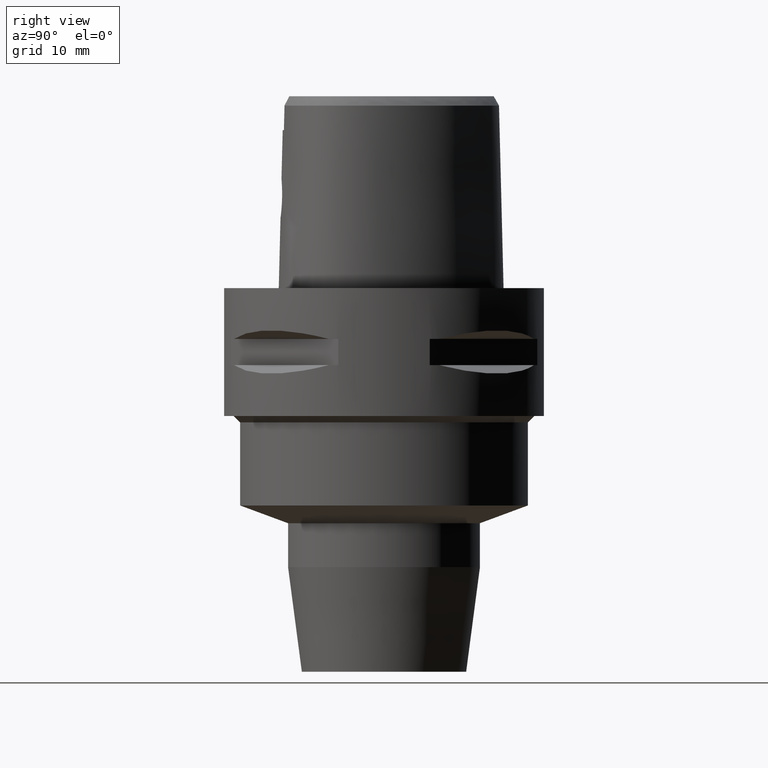
[diagram: clean part render]
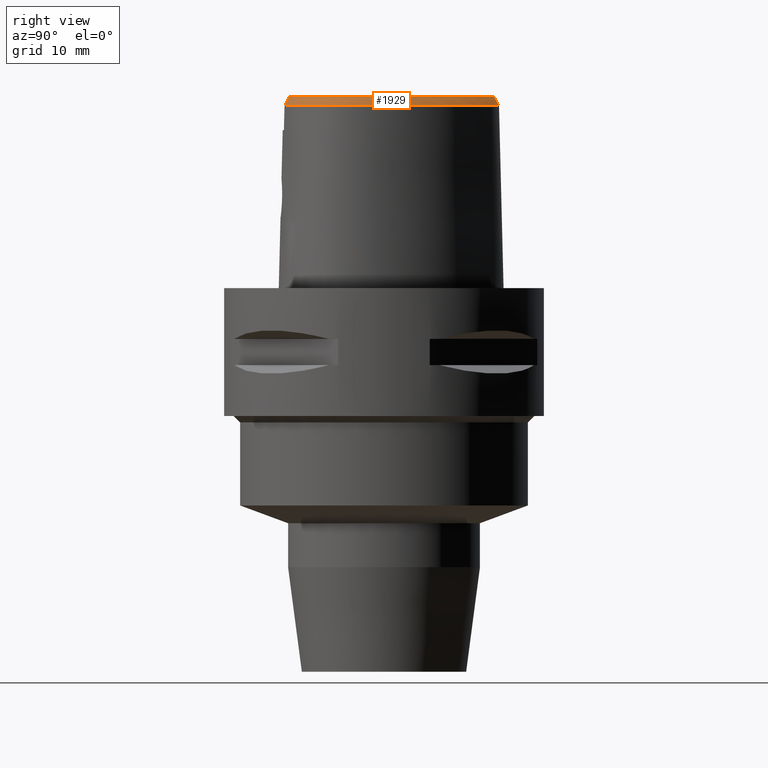
[diagram: same view with one face highlighted and labeled with its STEP entity id]
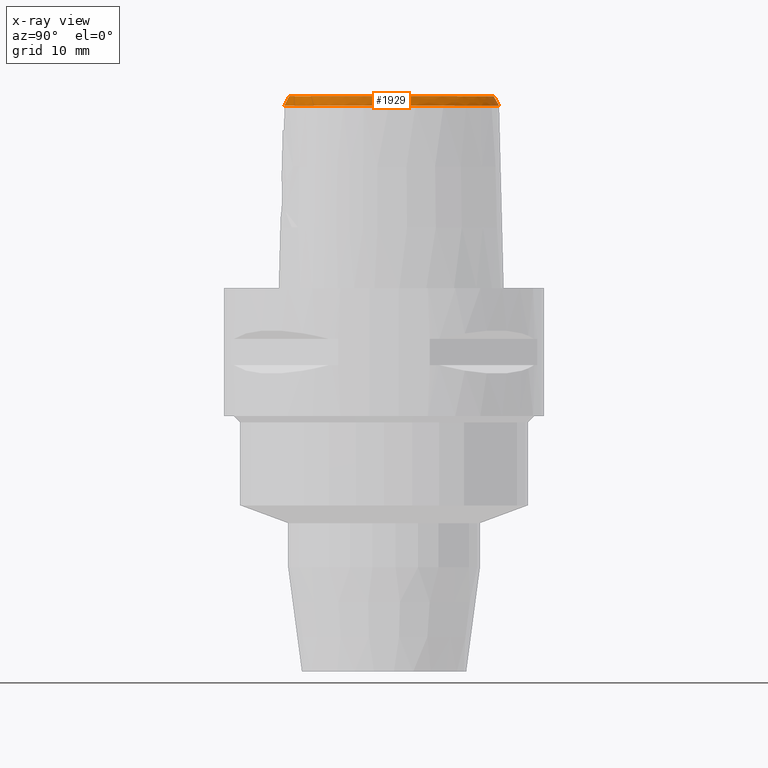
[diagram: x-ray of the same camera — body ghosted, the highlighted face saturated]
A machine part, right view. The second image highlights one B-rep face of the part: STEP entity #1929.
The next image is the same camera in x-ray: the body ghosted, the highlighted face saturated — about 0% of this face is hidden behind the body in this view.
In plain terms, the highlighted face is a freeform B-spline surface patch.
Its self-contained STEP definition (entity closure, byte-faithful):
#65=CARTESIAN_POINT('',(-6.301949014246E-11,1.715328888648E1,3.E1));
#70=CARTESIAN_POINT('',(-6.301949014246E-11,1.715328888648E1,3.E1));
#71=CARTESIAN_POINT('',(2.781743358187E-1,1.715328888649E1,3.E1));
#72=CARTESIAN_POINT('',(8.461369705698E-1,1.712422549201E1,3.E1));
#73=CARTESIAN_POINT('',(1.725779770091E0,1.698958235458E1,3.E1));
#74=CARTESIAN_POINT('',(2.654574267476E0,1.675366590228E1,3.E1));
#75=CARTESIAN_POINT('',(3.646346634455E0,1.639727879931E1,3.E1));
#76=CARTESIAN_POINT('',(4.648978793967E0,1.592888287609E1,3.E1));
#77=CARTESIAN_POINT('',(5.643278829914E0,1.536124022056E1,3.E1));
#78=CARTESIAN_POINT('',(6.663576897900E0,1.466993373162E1,3.E1));
#79=CARTESIAN_POINT('',(7.672880714160E0,1.387347375077E1,3.E1));
#80=CARTESIAN_POINT('',(8.704069001997E0,1.294091907278E1,3.E1));
#81=CARTESIAN_POINT('',(9.809858872996E0,1.179616593917E1,3.E1));
#82=CARTESIAN_POINT('',(1.099585363853E1,1.037375803600E1,3.E1));
#83=CARTESIAN_POINT('',(1.215953748883E1,8.734792007512E0,3.E1));
#84=CARTESIAN_POINT('',(1.320096428148E1,7.001526839511E0,3.E1));
#85=CARTESIAN_POINT('',(1.410630213819E1,5.201750867411E0,3.E1));
#86=CARTESIAN_POINT('',(1.484552963250E1,3.397817018095E0,3.E1));
#87=CARTESIAN_POINT('',(1.537493092019E1,1.760610458021E0,3.E1));
#88=CARTESIAN_POINT('',(1.573149397842E1,3.210408157224E-1,3.E1));
#89=CARTESIAN_POINT('',(1.596472918531E1,-9.955686745852E-1,3.E1));
#90=CARTESIAN_POINT('',(1.609593779092E1,-2.234970421776E0,3.E1));
#91=CARTESIAN_POINT('',(1.613327766090E1,-3.411433306686E0,3.E1));
#92=CARTESIAN_POINT('',(1.607933476981E1,-4.541326798673E0,3.E1));
#93=CARTESIAN_POINT('',(1.593185418556E1,-5.619408447129E0,3.E1));
#94=CARTESIAN_POINT('',(1.570229925424E1,-6.595931186450E0,3.E1));
#95=CARTESIAN_POINT('',(1.540551149589E1,-7.467658101072E0,3.E1));
#96=CARTESIAN_POINT('',(1.505264416751E1,-8.244300146185E0,3.E1));
#97=CARTESIAN_POINT('',(1.463669857372E1,-8.959662662165E0,3.E1));
#98=CARTESIAN_POINT('',(1.412997335554E1,-9.657961837707E0,3.E1));
#99=CARTESIAN_POINT('',(1.351749485342E1,-1.034760342802E1,3.E1));
#100=CARTESIAN_POINT('',(1.278002883976E1,-1.103239934203E1,3.E1));
#101=CARTESIAN_POINT('',(1.190626527410E1,-1.170101754544E1,3.E1));
#102=CARTESIAN_POINT('',(1.095059875698E1,-1.230709658088E1,3.E1));
#103=CARTESIAN_POINT('',(9.905724948429E0,-1.285982121622E1,3.E1));
#104=CARTESIAN_POINT('',(8.758408002726E0,-1.336252042714E1,3.E1));
#105=CARTESIAN_POINT('',(7.495431476875E0,-1.381401860791E1,3.E1));
#106=CARTESIAN_POINT('',(6.059498119900E0,-1.422152537676E1,3.E1));
#107=CARTESIAN_POINT('',(4.351174551259E0,-1.457717474671E1,3.E1));
#108=CARTESIAN_POINT('',(3.080024293188E0,-1.474393134872E1,3.E1));
#109=CARTESIAN_POINT('',(2.406543924165E0,-1.480491841402E1,3.E1));
#130=CARTESIAN_POINT('',(3.168920890823E0,-1.555911073834E1,2.852071374673E1));
#131=CARTESIAN_POINT('',(3.092740886374E0,-1.546020891130E1,2.871180793327E1));
#132=CARTESIAN_POINT('',(2.933449494369E0,-1.527271098125E1,2.907631265233E1));
#133=CARTESIAN_POINT('',(2.680997895754E0,-1.502452113761E1,2.956388901556E1));
#134=CARTESIAN_POINT('',(2.499740371108E0,-1.487511422502E1,2.986021006418E1));
#135=CARTESIAN_POINT('',(2.406543924165E0,-1.480491841402E1,3.E1));
#140=CARTESIAN_POINT('',(-2.785047616194E-11,1.798202997910E1,
2.852071728569E1));
#141=CARTESIAN_POINT('',(2.938165127418E-1,1.798202997910E1,2.852071728569E1));
#142=CARTESIAN_POINT('',(8.804458130293E-1,1.795405330957E1,2.852060428472E1));
#143=CARTESIAN_POINT('',(1.831871468908E0,1.781472363942E1,2.852076493840E1));
#144=CARTESIAN_POINT('',(2.817086184386E0,1.757052614119E1,2.852071641668E1));
#145=CARTESIAN_POINT('',(3.847084431822E0,1.721075742549E1,2.852071665371E1));
#146=CARTESIAN_POINT('',(4.910783279314E0,1.672779719123E1,2.852072341258E1));
#147=CARTESIAN_POINT('',(5.986692590227E0,1.612449099150E1,2.852071572433E1));
#148=CARTESIAN_POINT('',(7.047068233906E0,1.541641131498E1,2.852072698246E1));
#149=CARTESIAN_POINT('',(8.110971385773E0,1.458914485717E1,2.852071912210E1));
#150=CARTESIAN_POINT('',(9.192999848597E0,1.362198297783E1,2.852071946810E1));
#151=CARTESIAN_POINT('',(1.034269201733E1,1.244304711909E1,2.852070842262E1));
#152=CARTESIAN_POINT('',(1.153704874450E1,1.102665121320E1,2.852071905381E1));
#153=CARTESIAN_POINT('',(1.271265117317E1,9.401004413258E0,2.852072762209E1));
#154=CARTESIAN_POINT('',(1.380154184962E1,7.628598012364E0,2.852068643211E1));
#155=CARTESIAN_POINT('',(1.474745196757E1,5.788295374651E0,2.852072741465E1));
#156=CARTESIAN_POINT('',(1.549983465724E1,4.010298593931E0,2.852070669004E1));
#157=CARTESIAN_POINT('',(1.606850953942E1,2.342579004074E0,2.852071993437E1));
#158=CARTESIAN_POINT('',(1.647577125132E1,8.018519579868E-1,2.852071506211E1));
#159=CARTESIAN_POINT('',(1.674682078325E1,-6.134299517335E-1,2.852071642236E1));
#160=CARTESIAN_POINT('',(1.690560867773E1,-1.937791433471E0,2.852072268517E1));
#161=CARTESIAN_POINT('',(1.696366750899E1,-3.211555099408E0,2.852071506623E1));
#162=CARTESIAN_POINT('',(1.692098381929E1,-4.431797834231E0,2.852071642479E1));
#163=CARTESIAN_POINT('',(1.678231117131E1,-5.571043062912E0,2.852072531871E1));
#164=CARTESIAN_POINT('',(1.655498942838E1,-6.624192014902E0,2.852071647227E1));
#165=CARTESIAN_POINT('',(1.625360589613E1,-7.573268431237E0,2.852071029196E1));
#166=CARTESIAN_POINT('',(1.588447048002E1,-8.436807986137E0,2.852072610166E1));
#167=CARTESIAN_POINT('',(1.544936115215E1,-9.227234670856E0,2.852073137009E1));
#168=CARTESIAN_POINT('',(1.493212083505E1,-9.978283257004E0,2.852069070674E1));
#169=CARTESIAN_POINT('',(1.431469721374E1,-1.071267780742E1,2.852072417142E1));
#170=CARTESIAN_POINT('',(1.357395694205E1,-1.144065842057E1,2.852072165713E1));
#171=CARTESIAN_POINT('',(1.270344234195E1,-1.214953424946E1,2.852072065183E1));
#172=CARTESIAN_POINT('',(1.171291712324E1,-1.281871451477E1,2.852071565398E1));
#173=CARTESIAN_POINT('',(1.062983432112E1,-1.342632327702E1,2.852072279452E1));
#174=CARTESIAN_POINT('',(9.464170682796E0,-1.396948522821E1,2.852070934219E1));
#175=CARTESIAN_POINT('',(8.175232924831E0,-1.446288339580E1,2.852072589632E1));
#176=CARTESIAN_POINT('',(6.723862984294E0,-1.490598933493E1,2.852072127642E1));
#177=CARTESIAN_POINT('',(5.084039457933E0,-1.528534650842E1,2.852070436948E1));
#178=CARTESIAN_POINT('',(3.829916567733E0,-1.548206888888E1,2.852069800888E1));
#179=CARTESIAN_POINT('',(3.168920890823E0,-1.555911073834E1,2.852071374673E1));
#238=DIRECTION('',(-2.074123130170E-11,-4.887572537803E-1,8.724198226067E-1));
#239=VECTOR('',#238,1.695608783729E0);
#240=CARTESIAN_POINT('',(-2.785047616194E-11,1.798202997910E1,
2.852071728569E1));
#241=LINE('',#240,#239);
#1494=CARTESIAN_POINT('',(2.406543924164E0,-1.480491841402E1,3.E1));
#1496=VERTEX_POINT('',#1494);
#1498=VERTEX_POINT('',#65);
#1503=VERTEX_POINT('',#130);
#1508=CARTESIAN_POINT('',(-2.785047616194E-11,1.798202997910E1,
2.852071728569E1));
#1509=VERTEX_POINT('',#1508);
#1696=CARTESIAN_POINT('',(1.922686646612E0,-1.477679822769E1,3.012008801479E1));
#1697=CARTESIAN_POINT('',(1.945821125652E0,-1.509707300051E1,2.954691604351E1));
#1698=CARTESIAN_POINT('',(1.968955604693E0,-1.541734777332E1,2.897374407223E1));
#1699=CARTESIAN_POINT('',(1.992090083734E0,-1.573762254613E1,2.840057210095E1));
#1700=CARTESIAN_POINT('',(2.082596182477E0,-1.476524520195E1,3.012008801326E1));
#1701=CARTESIAN_POINT('',(2.107672932955E0,-1.508537967837E1,2.954691604928E1));
#1702=CARTESIAN_POINT('',(2.132749683433E0,-1.540551415479E1,2.897374408530E1));
#1703=CARTESIAN_POINT('',(2.157826433911E0,-1.572564863121E1,2.840057212132E1));
#1704=CARTESIAN_POINT('',(2.374617372071E0,-1.474146983280E1,3.012008801401E1));
#1705=CARTESIAN_POINT('',(2.403255274126E0,-1.506131451553E1,2.954691604647E1));
#1706=CARTESIAN_POINT('',(2.431893176181E0,-1.538115919826E1,2.897374407894E1));
#1707=CARTESIAN_POINT('',(2.460531078236E0,-1.570100388099E1,2.840057211141E1));
#1708=CARTESIAN_POINT('',(3.122566077943E0,-1.466799619404E1,3.012008803487E1));
#1709=CARTESIAN_POINT('',(3.160410818520E0,-1.498693658265E1,2.954691596775E1));
#1710=CARTESIAN_POINT('',(3.198255559098E0,-1.530587697125E1,2.897374390063E1));
#1711=CARTESIAN_POINT('',(3.236100299675E0,-1.562481735986E1,2.840057183351E1));
#1712=CARTESIAN_POINT('',(4.149134591188E0,-1.453120555135E1,3.012008812332E1));
#1713=CARTESIAN_POINT('',(4.199906124727E0,-1.484843139200E1,2.954691563402E1));
#1714=CARTESIAN_POINT('',(4.250677658267E0,-1.516565723266E1,2.897374314473E1));
#1715=CARTESIAN_POINT('',(4.301449191806E0,-1.548288307332E1,2.840057065544E1));
#1716=CARTESIAN_POINT('',(5.432404132682E0,-1.428939237854E1,3.012008799789E1));
#1717=CARTESIAN_POINT('',(5.500229061418E0,-1.460341872932E1,2.954691610728E1));
#1718=CARTESIAN_POINT('',(5.568053990154E0,-1.491744508010E1,2.897374421667E1));
#1719=CARTESIAN_POINT('',(5.635878918891E0,-1.523147143089E1,2.840057232606E1));
#1720=CARTESIAN_POINT('',(6.640342470660E0,-1.399283007174E1,3.012008778882E1));
#1721=CARTESIAN_POINT('',(6.725254186958E0,-1.430267850995E1,2.954691689605E1));
#1722=CARTESIAN_POINT('',(6.810165903255E0,-1.461252694815E1,2.897374600327E1));
#1723=CARTESIAN_POINT('',(6.895077619553E0,-1.492237538635E1,2.840057511049E1));
#1724=CARTESIAN_POINT('',(7.762432180978E0,-1.365042042368E1,3.012008784308E1));
#1725=CARTESIAN_POINT('',(7.864496590882E0,-1.395505664002E1,2.954691669138E1));
#1726=CARTESIAN_POINT('',(7.966561000786E0,-1.425969285636E1,2.897374553968E1));
#1727=CARTESIAN_POINT('',(8.068625410690E0,-1.456432907270E1,2.840057438799E1));
#1728=CARTESIAN_POINT('',(8.791260478968E0,-1.327175962248E1,3.012008808122E1));
#1729=CARTESIAN_POINT('',(8.910512236392E0,-1.357009588953E1,2.954691579286E1));
#1730=CARTESIAN_POINT('',(9.029763993815E0,-1.386843215657E1,2.897374350450E1));
#1731=CARTESIAN_POINT('',(9.149015751239E0,-1.416676842361E1,2.840057121614E1));
#1732=CARTESIAN_POINT('',(9.727079869510E0,-1.286457016574E1,3.012008810010E1));
#1733=CARTESIAN_POINT('',(9.863532353173E0,-1.315545067886E1,2.954691572160E1));
#1734=CARTESIAN_POINT('',(9.999984836836E0,-1.344633119199E1,2.897374334310E1));
#1735=CARTESIAN_POINT('',(1.013643732050E1,-1.373721170511E1,2.840057096460E1));
#1736=CARTESIAN_POINT('',(1.057283496741E1,-1.243556590425E1,3.012008808712E1));
#1737=CARTESIAN_POINT('',(1.072638267857E1,-1.271780614814E1,2.954691577058E1));
#1738=CARTESIAN_POINT('',(1.087993038972E1,-1.300004639204E1,2.897374345403E1));
#1739=CARTESIAN_POINT('',(1.103347810087E1,-1.328228663594E1,2.840057113749E1));
#1740=CARTESIAN_POINT('',(1.133193453308E1,-1.199096019406E1,3.012008803507E1));
#1741=CARTESIAN_POINT('',(1.150244070128E1,-1.226330212332E1,2.954691596699E1));
#1742=CARTESIAN_POINT('',(1.167294686948E1,-1.253564405258E1,2.897374389892E1));
#1743=CARTESIAN_POINT('',(1.184345303768E1,-1.280798598184E1,2.840057183084E1));
#1744=CARTESIAN_POINT('',(1.201006535665E1,-1.153530490648E1,3.012008802164E1));
#1745=CARTESIAN_POINT('',(1.219724459101E1,-1.179647988711E1,2.954691601764E1));
#1746=CARTESIAN_POINT('',(1.238442382536E1,-1.205765486774E1,2.897374401363E1));
#1747=CARTESIAN_POINT('',(1.257160305971E1,-1.231882984837E1,2.840057200963E1));
#1748=CARTESIAN_POINT('',(1.261251172525E1,-1.107272907465E1,3.012008809234E1));
#1749=CARTESIAN_POINT('',(1.281599911587E1,-1.132142095904E1,2.954691575094E1));
#1750=CARTESIAN_POINT('',(1.301948650648E1,-1.157011284344E1,2.897374340955E1));
#1751=CARTESIAN_POINT('',(1.322297389710E1,-1.181880472783E1,2.840057106815E1));
#1752=CARTESIAN_POINT('',(1.314581993234E1,-1.060557591130E1,3.012008809173E1));
#1753=CARTESIAN_POINT('',(1.336510108029E1,-1.084047231168E1,2.954691575321E1));
#1754=CARTESIAN_POINT('',(1.358438222824E1,-1.107536871205E1,2.897374341468E1));
#1755=CARTESIAN_POINT('',(1.380366337620E1,-1.131026511243E1,2.840057107616E1));
#1756=CARTESIAN_POINT('',(1.361647969650E1,-1.013509881771E1,3.012008808646E1));
#1757=CARTESIAN_POINT('',(1.385089862860E1,-1.035490330289E1,2.954691577310E1));
#1758=CARTESIAN_POINT('',(1.408531756071E1,-1.057470778807E1,2.897374345973E1));
#1759=CARTESIAN_POINT('',(1.431973649281E1,-1.079451227325E1,2.840057114637E1));
#1760=CARTESIAN_POINT('',(1.403026541876E1,-9.661966217346E0,3.012008804247E1));
#1761=CARTESIAN_POINT('',(1.427902861392E1,-9.865407261719E0,2.954691593905E1));
#1762=CARTESIAN_POINT('',(1.452779180907E1,-1.006884830609E1,2.897374383562E1));
#1763=CARTESIAN_POINT('',(1.477655500422E1,-1.027228935047E1,2.840057173220E1));
#1764=CARTESIAN_POINT('',(1.439274980106E1,-9.185527938609E0,3.012008809060E1));
#1765=CARTESIAN_POINT('',(1.465488829202E1,-9.371426394114E0,2.954691575746E1));
#1766=CARTESIAN_POINT('',(1.491702678299E1,-9.557324849619E0,2.897374342433E1));
#1767=CARTESIAN_POINT('',(1.517916527395E1,-9.743223305124E0,2.840057109119E1));
#1768=CARTESIAN_POINT('',(1.470700888810E1,-8.707521731305E0,3.012008807161E1));
#1769=CARTESIAN_POINT('',(1.498144200673E1,-8.874758903665E0,2.954691582913E1));
#1770=CARTESIAN_POINT('',(1.525587512535E1,-9.041996076026E0,2.897374358666E1));
#1771=CARTESIAN_POINT('',(1.553030824398E1,-9.209233248387E0,2.840057134418E1));
#1772=CARTESIAN_POINT('',(1.498275974910E1,-8.216836922135E0,3.012008810792E1));
#1773=CARTESIAN_POINT('',(1.526832630011E1,-8.364255457992E0,2.954691569213E1));
#1774=CARTESIAN_POINT('',(1.555389285111E1,-8.511673993849E0,2.897374327633E1));
#1775=CARTESIAN_POINT('',(1.583945940211E1,-8.659092529706E0,2.840057086053E1));
#1776=CARTESIAN_POINT('',(1.523141419776E1,-7.692246439514E0,3.012008805358E1));
#1777=CARTESIAN_POINT('',(1.552647477728E1,-7.819574449907E0,2.954691589713E1));
#1778=CARTESIAN_POINT('',(1.582153535679E1,-7.946902460300E0,2.897374374068E1));
#1779=CARTESIAN_POINT('',(1.611659593630E1,-8.074230470693E0,2.840057158423E1));
#1780=CARTESIAN_POINT('',(1.545352413466E1,-7.126244850972E0,3.012008806171E1));
#1781=CARTESIAN_POINT('',(1.575659246377E1,-7.233107441957E0,2.954691586645E1));
#1782=CARTESIAN_POINT('',(1.605966079288E1,-7.339970032942E0,2.897374367120E1));
#1783=CARTESIAN_POINT('',(1.636272912199E1,-7.446832623927E0,2.840057147594E1));
#1784=CARTESIAN_POINT('',(1.564642638468E1,-6.515966441862E0,3.012008808824E1));
#1785=CARTESIAN_POINT('',(1.595599011266E1,-6.602190481980E0,2.954691576638E1));
#1786=CARTESIAN_POINT('',(1.626555384064E1,-6.688414522098E0,2.897374344453E1));
#1787=CARTESIAN_POINT('',(1.657511756863E1,-6.774638562216E0,2.840057112267E1));
#1788=CARTESIAN_POINT('',(1.580758365340E1,-5.856052087254E0,3.012008809588E1));
#1789=CARTESIAN_POINT('',(1.612215927938E1,-5.921633187982E0,2.954691573753E1));
#1790=CARTESIAN_POINT('',(1.643673490536E1,-5.987214288709E0,2.897374337918E1));
#1791=CARTESIAN_POINT('',(1.675131053134E1,-6.052795389437E0,2.840057102082E1));
#1792=CARTESIAN_POINT('',(1.593316969254E1,-5.142031329012E0,3.012008807507E1));
#1793=CARTESIAN_POINT('',(1.625132453781E1,-5.187088831580E0,2.954691581606E1));
#1794=CARTESIAN_POINT('',(1.656947938307E1,-5.232146334148E0,2.897374355706E1));
#1795=CARTESIAN_POINT('',(1.688763422834E1,-5.277203836716E0,2.840057129806E1));
#1796=CARTESIAN_POINT('',(1.601857459561E1,-4.368726612671E0,3.012008800735E1));
#1797=CARTESIAN_POINT('',(1.633893576718E1,-4.393526852995E0,2.954691607155E1));
#1798=CARTESIAN_POINT('',(1.665929693875E1,-4.418327093320E0,2.897374413574E1));
#1799=CARTESIAN_POINT('',(1.697965811033E1,-4.443127333644E0,2.840057219994E1));
#1800=CARTESIAN_POINT('',(1.605815849082E1,-3.532434800921E0,3.012008806356E1));
#1801=CARTESIAN_POINT('',(1.637943171660E1,-3.537336720019E0,2.954691585952E1));
#1802=CARTESIAN_POINT('',(1.670070494238E1,-3.542238639117E0,2.897374365547E1));
#1803=CARTESIAN_POINT('',(1.702197816816E1,-3.547140558215E0,2.840057145143E1));
#1804=CARTESIAN_POINT('',(1.604548222887E1,-2.630548167827E0,3.012008808326E1));
#1805=CARTESIAN_POINT('',(1.636645259919E1,-2.615971588283E0,2.954691578517E1));
#1806=CARTESIAN_POINT('',(1.668742296950E1,-2.601395008738E0,2.897374348709E1));
#1807=CARTESIAN_POINT('',(1.700839333982E1,-2.586818429193E0,2.840057118901E1));
#1808=CARTESIAN_POINT('',(1.597363706268E1,-1.661138461969E0,3.012008812213E1));
#1809=CARTESIAN_POINT('',(1.629317551373E1,-1.627609679012E0,2.954691563850E1));
#1810=CARTESIAN_POINT('',(1.661271396479E1,-1.594080896054E0,2.897374315487E1));
#1811=CARTESIAN_POINT('',(1.693225241584E1,-1.560552113097E0,2.840057067123E1));
#1812=CARTESIAN_POINT('',(1.583542507393E1,-6.248093591618E-1,
3.012008800160E1));
#1813=CARTESIAN_POINT('',(1.615247788242E1,-5.728348654478E-1,
2.954691609325E1));
#1814=CARTESIAN_POINT('',(1.646953069091E1,-5.208603717338E-1,
2.897374418491E1));
#1815=CARTESIAN_POINT('',(1.678658349941E1,-4.688858780197E-1,
2.840057227657E1));
#1816=CARTESIAN_POINT('',(1.562358748591E1,4.773125859172E-1,3.012008778788E1));
#1817=CARTESIAN_POINT('',(1.593718759540E1,5.471249853047E-1,2.954691689961E1));
#1818=CARTESIAN_POINT('',(1.625078770489E1,6.169373846922E-1,2.897374601134E1));
#1819=CARTESIAN_POINT('',(1.656438781437E1,6.867497840797E-1,2.840057512307E1));
#1820=CARTESIAN_POINT('',(1.533188994431E1,1.638943498341E0,3.012008782130E1));
#1821=CARTESIAN_POINT('',(1.564113345180E1,1.726025683311E0,2.954691677352E1));
#1822=CARTESIAN_POINT('',(1.595037695929E1,1.813107868282E0,2.897374572575E1));
#1823=CARTESIAN_POINT('',(1.625962046677E1,1.900190053252E0,2.840057467797E1));
#1824=CARTESIAN_POINT('',(1.495662935651E1,2.847326211993E0,3.012008808093E1));
#1825=CARTESIAN_POINT('',(1.526066879937E1,2.951113194158E0,2.954691579397E1));
#1826=CARTESIAN_POINT('',(1.556470824222E1,3.054900176323E0,2.897374350700E1));
#1827=CARTESIAN_POINT('',(1.586874768508E1,3.158687158488E0,2.840057122003E1));
#1828=CARTESIAN_POINT('',(1.449584392290E1,4.089006826525E0,3.012008809437E1));
#1829=CARTESIAN_POINT('',(1.479386460988E1,4.208977112221E0,2.954691574325E1));
#1830=CARTESIAN_POINT('',(1.509188529685E1,4.328947397917E0,2.897374339212E1));
#1831=CARTESIAN_POINT('',(1.538990598383E1,4.448917683614E0,2.840057104100E1));
#1832=CARTESIAN_POINT('',(1.394987453004E1,5.348972431843E0,3.012008800752E1));
#1833=CARTESIAN_POINT('',(1.424110692693E1,5.484584978622E0,2.954691607089E1));
#1834=CARTESIAN_POINT('',(1.453233932383E1,5.620197525401E0,2.897374413426E1));
#1835=CARTESIAN_POINT('',(1.482357172072E1,5.755810072180E0,2.840057219763E1));
#1836=CARTESIAN_POINT('',(1.332431317757E1,6.605327781349E0,3.012008805414E1));
#1837=CARTESIAN_POINT('',(1.360799650413E1,6.756093657444E0,2.954691589505E1));
#1838=CARTESIAN_POINT('',(1.389167983070E1,6.906859533540E0,2.897374373597E1));
#1839=CARTESIAN_POINT('',(1.417536315726E1,7.057625409635E0,2.840057157689E1));
#1840=CARTESIAN_POINT('',(1.262821633838E1,7.835836642879E0,3.012008808052E1));
#1841=CARTESIAN_POINT('',(1.290356455501E1,8.001335341934E0,2.954691579552E1));
#1842=CARTESIAN_POINT('',(1.317891277163E1,8.166834040988E0,2.897374351052E1));
#1843=CARTESIAN_POINT('',(1.345426098826E1,8.332332740043E0,2.840057122552E1));
#1844=CARTESIAN_POINT('',(1.187088891599E1,9.023556399776E0,3.012008798751E1));
#1845=CARTESIAN_POINT('',(1.213714796805E1,9.203314224983E0,2.954691614640E1));
#1846=CARTESIAN_POINT('',(1.240340702012E1,9.383072050189E0,2.897374430528E1));
#1847=CARTESIAN_POINT('',(1.266966607218E1,9.562829875396E0,2.840057246416E1));
#1848=CARTESIAN_POINT('',(1.106496998866E1,1.015101662415E1,3.012008802636E1));
#1849=CARTESIAN_POINT('',(1.132134526417E1,1.034461434302E1,2.954691599984E1));
#1850=CARTESIAN_POINT('',(1.157772053968E1,1.053821206188E1,2.897374397333E1));
#1851=CARTESIAN_POINT('',(1.183409581518E1,1.073180978075E1,2.840057194681E1));
#1852=CARTESIAN_POINT('',(1.022744942021E1,1.119958992512E1,3.012008811963E1));
#1853=CARTESIAN_POINT('',(1.047311428167E1,1.140661533365E1,2.954691564792E1));
#1854=CARTESIAN_POINT('',(1.071877914313E1,1.161364074217E1,2.897374317621E1));
#1855=CARTESIAN_POINT('',(1.096444400459E1,1.182066615070E1,2.840057070450E1));
#1856=CARTESIAN_POINT('',(9.371827486460E0,1.215964414782E1,3.012008794796E1));
#1857=CARTESIAN_POINT('',(9.605914266197E0,1.237968315045E1,2.954691629567E1));
#1858=CARTESIAN_POINT('',(9.840001045935E0,1.259972215309E1,2.897374464338E1));
#1859=CARTESIAN_POINT('',(1.007408782567E1,1.281976115572E1,2.840057299109E1));
#1860=CARTESIAN_POINT('',(8.510685036855E0,1.302541844836E1,3.012008788914E1));
#1861=CARTESIAN_POINT('',(8.732303724511E0,1.325801797646E1,2.954691651756E1));
#1862=CARTESIAN_POINT('',(8.953922412168E0,1.349061750456E1,2.897374514598E1));
#1863=CARTESIAN_POINT('',(9.175541099824E0,1.372321703266E1,2.840057377440E1));
#1864=CARTESIAN_POINT('',(7.657374941579E0,1.379258118132E1,3.012008804067E1));
#1865=CARTESIAN_POINT('',(7.865589011069E0,1.403726273100E1,2.954691594586E1));
#1866=CARTESIAN_POINT('',(8.073803080559E0,1.428194428068E1,2.897374385105E1));
#1867=CARTESIAN_POINT('',(8.282017150049E0,1.452662583036E1,2.840057175624E1));
#1868=CARTESIAN_POINT('',(6.822619739383E0,1.446129381088E1,3.012008812718E1));
#1869=CARTESIAN_POINT('',(7.016435996650E0,1.471754090941E1,2.954691561944E1));
#1870=CARTESIAN_POINT('',(7.210252253917E0,1.497378800794E1,2.897374311170E1));
#1871=CARTESIAN_POINT('',(7.404068511185E0,1.523003510646E1,2.840057060395E1));
#1872=CARTESIAN_POINT('',(6.010629730642E0,1.503758966386E1,3.012008779649E1));
#1873=CARTESIAN_POINT('',(6.189070092458E0,1.530478152881E1,2.954691686715E1));
#1874=CARTESIAN_POINT('',(6.367510454275E0,1.557197339376E1,2.897374593781E1));
#1875=CARTESIAN_POINT('',(6.545950816092E0,1.583916525871E1,2.840057500846E1));
#1876=CARTESIAN_POINT('',(5.224692342434E0,1.552790825154E1,3.012008760815E1));
#1877=CARTESIAN_POINT('',(5.386768140964E0,1.580534237565E1,2.954691757772E1));
#1878=CARTESIAN_POINT('',(5.548843939495E0,1.608277649977E1,2.897374754728E1));
#1879=CARTESIAN_POINT('',(5.710919738025E0,1.636021062389E1,2.840057751685E1));
#1880=CARTESIAN_POINT('',(4.469231958216E0,1.593758945045E1,3.012008770200E1));
#1881=CARTESIAN_POINT('',(4.613948974419E0,1.622447126388E1,2.954691722363E1));
#1882=CARTESIAN_POINT('',(4.758665990622E0,1.651135307731E1,2.897374674527E1));
#1883=CARTESIAN_POINT('',(4.903383006825E0,1.679823489074E1,2.840057626690E1));
#1884=CARTESIAN_POINT('',(3.746424900889E0,1.627318960350E1,3.012008801079E1));
#1885=CARTESIAN_POINT('',(3.872816459232E0,1.656861464606E1,2.954691605860E1));
#1886=CARTESIAN_POINT('',(3.999208017576E0,1.686403968862E1,2.897374410642E1));
#1887=CARTESIAN_POINT('',(4.125599575919E0,1.715946473119E1,2.840057215423E1));
#1888=CARTESIAN_POINT('',(3.055826780983E0,1.654185150168E1,3.012008815653E1));
#1889=CARTESIAN_POINT('',(3.162926149812E0,1.684481472392E1,2.954691550873E1));
#1890=CARTESIAN_POINT('',(3.270025518641E0,1.714777794617E1,2.897374286093E1));
#1891=CARTESIAN_POINT('',(3.377124887470E0,1.745074116842E1,2.840057021313E1));
#1892=CARTESIAN_POINT('',(2.394587204997E0,1.675077370900E1,3.012008809530E1));
#1893=CARTESIAN_POINT('',(2.481568736719E0,1.706012225819E1,2.954691573978E1));
#1894=CARTESIAN_POINT('',(2.568550268440E0,1.736947080739E1,2.897374338426E1));
#1895=CARTESIAN_POINT('',(2.655531800161E0,1.767881935658E1,2.840057102874E1));
#1896=CARTESIAN_POINT('',(1.760278068928E0,1.690580934784E1,3.012008805704E1));
#1897=CARTESIAN_POINT('',(1.826379762641E0,1.722029090252E1,2.954691588410E1));
#1898=CARTESIAN_POINT('',(1.892481456353E0,1.753477245721E1,2.897374371116E1));
#1899=CARTESIAN_POINT('',(1.958583150065E0,1.784925401189E1,2.840057153823E1));
#1900=CARTESIAN_POINT('',(1.152146191297E0,1.701175201594E1,3.012008810192E1));
#1901=CARTESIAN_POINT('',(1.196706469029E0,1.733000789126E1,2.954691571478E1));
#1902=CARTESIAN_POINT('',(1.241266746762E0,1.764826376659E1,2.897374332764E1));
#1903=CARTESIAN_POINT('',(1.285827024495E0,1.796651964192E1,2.840057094051E1));
#1904=CARTESIAN_POINT('',(5.644743381176E-1,1.707289440601E1,3.012008809733E1));
#1905=CARTESIAN_POINT('',(5.869904243750E-1,1.739347411839E1,2.954691573211E1));
#1906=CARTESIAN_POINT('',(6.095065106325E-1,1.771405383077E1,2.897374336688E1));
#1907=CARTESIAN_POINT('',(6.320225968899E-1,1.803463354315E1,2.840057100166E1));
#1908=CARTESIAN_POINT('',(3.837532583586E-2,1.709130782511E1,3.012008806097E1));
#1909=CARTESIAN_POINT('',(3.978701573717E-2,1.741263085417E1,2.954691586925E1));
#1910=CARTESIAN_POINT('',(4.119870563849E-2,1.773395388324E1,2.897374367752E1));
#1911=CARTESIAN_POINT('',(4.261039553980E-2,1.805527691230E1,2.840057148580E1));
#1912=CARTESIAN_POINT('',(-3.078506121227E-1,1.708173520290E1,
3.012008807987E1));
#1913=CARTESIAN_POINT('',(-3.199104299578E-1,1.740267180238E1,
2.954691579795E1));
#1914=CARTESIAN_POINT('',(-3.319702477928E-1,1.772360840187E1,
2.897374351603E1));
#1915=CARTESIAN_POINT('',(-3.440300656278E-1,1.804454500135E1,
2.840057123410E1));
#1916=CARTESIAN_POINT('',(-4.674758249169E-1,1.707336765684E1,
3.012008810658E1));
#1917=CARTESIAN_POINT('',(-4.854677397860E-1,1.739395380440E1,
2.954691569718E1));
#1918=CARTESIAN_POINT('',(-5.034596546551E-1,1.771453995196E1,
2.897374328778E1));
#1919=CARTESIAN_POINT('',(-5.214515695243E-1,1.803512609953E1,
2.840057087839E1));
#1920=B_SPLINE_SURFACE_WITH_KNOTS('',3,3,((#1696,#1697,#1698,#1699),(#1700,
#1701,#1702,#1703),(#1704,#1705,#1706,#1707),(#1708,#1709,#1710,#1711),(#1712,
#1713,#1714,#1715),(#1716,#1717,#1718,#1719),(#1720,#1721,#1722,#1723),(#1724,
#1725,#1726,#1727),(#1728,#1729,#1730,#1731),(#1732,#1733,#1734,#1735),(#1736,
#1737,#1738,#1739),(#1740,#1741,#1742,#1743),(#1744,#1745,#1746,#1747),(#1748,
#1749,#1750,#1751),(#1752,#1753,#1754,#1755),(#1756,#1757,#1758,#1759),(#1760,
#1761,#1762,#1763),(#1764,#1765,#1766,#1767),(#1768,#1769,#1770,#1771),(#1772,
#1773,#1774,#1775),(#1776,#1777,#1778,#1779),(#1780,#1781,#1782,#1783),(#1784,
#1785,#1786,#1787),(#1788,#1789,#1790,#1791),(#1792,#1793,#1794,#1795),(#1796,
#1797,#1798,#1799),(#1800,#1801,#1802,#1803),(#1804,#1805,#1806,#1807),(#1808,
#1809,#1810,#1811),(#1812,#1813,#1814,#1815),(#1816,#1817,#1818,#1819),(#1820,
#1821,#1822,#1823),(#1824,#1825,#1826,#1827),(#1828,#1829,#1830,#1831),(#1832,
#1833,#1834,#1835),(#1836,#1837,#1838,#1839),(#1840,#1841,#1842,#1843),(#1844,
#1845,#1846,#1847),(#1848,#1849,#1850,#1851),(#1852,#1853,#1854,#1855),(#1856,
#1857,#1858,#1859),(#1860,#1861,#1862,#1863),(#1864,#1865,#1866,#1867),(#1868,
#1869,#1870,#1871),(#1872,#1873,#1874,#1875),(#1876,#1877,#1878,#1879),(#1880,
#1881,#1882,#1883),(#1884,#1885,#1886,#1887),(#1888,#1889,#1890,#1891),(#1892,
#1893,#1894,#1895),(#1896,#1897,#1898,#1899),(#1900,#1901,#1902,#1903),(#1904,
#1905,#1906,#1907),(#1908,#1909,#1910,#1911),(#1912,#1913,#1914,#1915),(#1916,
#1917,#1918,#1919)),.UNSPECIFIED.,.F.,.F.,.F.,(4,1,1,1,1,1,1,1,1,1,1,1,1,1,1,1,
1,1,1,1,1,1,1,1,1,1,1,1,1,1,1,1,1,1,1,1,1,1,1,1,1,1,1,1,1,1,1,1,1,1,1,1,1,4),(4,
4),(-6.850724150829E-3,0.E0,5.706470806014E-3,2.559234138984E-2,
4.547821197368E-2,6.536408255751E-2,8.524995314132E-2,1.051358237252E-1,
1.250216943090E-1,1.449075648928E-1,1.647934354767E-1,1.846793060605E-1,
2.045651766443E-1,2.244510472281E-1,2.443369178120E-1,2.642227883958E-1,
2.841086589796E-1,3.039945295635E-1,3.238804001472E-1,3.437662707311E-1,
3.636521413150E-1,3.835380118988E-1,4.034238824826E-1,4.233097530664E-1,
4.431956236503E-1,4.630814942341E-1,4.829673648179E-1,5.028532354018E-1,
5.227391059856E-1,5.426249765694E-1,5.625108471533E-1,5.823967177370E-1,
6.022825883209E-1,6.221684589048E-1,6.420543294886E-1,6.619402000724E-1,
6.818260706562E-1,7.017119412401E-1,7.215978118239E-1,7.414836824077E-1,
7.613695529916E-1,7.812554235753E-1,8.011412941592E-1,8.210271647431E-1,
8.409130353268E-1,8.607989059107E-1,8.806847764945E-1,9.005706470784E-1,
9.204565176622E-1,9.403423882460E-1,9.602282588299E-1,9.801141294136E-1,1.E0,
1.016057694065E0),(-5.882641271487E-2,1.058858535124E0),.UNSPECIFIED.);
#1921=ORIENTED_EDGE('',*,*,#1683,.T.);
#1922=ORIENTED_EDGE('',*,*,#1666,.F.);
#1924=ORIENTED_EDGE('',*,*,#1923,.F.);
#1926=ORIENTED_EDGE('',*,*,#1925,.T.);
#1927=EDGE_LOOP('',(#1921,#1922,#1924,#1926));
#1928=FACE_OUTER_BOUND('',#1927,.F.);
#110=B_SPLINE_CURVE_WITH_KNOTS('',3,(#70,#71,#72,#73,#74,#75,#76,#77,#78,#79,
#80,#81,#82,#83,#84,#85,#86,#87,#88,#89,#90,#91,#92,#93,#94,#95,#96,#97,#98,#99,
#100,#101,#102,#103,#104,#105,#106,#107,#108,#109),.UNSPECIFIED.,.F.,.F.,(4,1,1,
1,1,1,1,1,1,1,1,1,1,1,1,1,1,1,1,1,1,1,1,1,1,1,1,1,1,1,1,1,1,1,1,1,1,4),(0.E0,
2.702702702703E-2,5.405405405405E-2,8.108108108108E-2,1.081081081081E-1,
1.351351351351E-1,1.621621621622E-1,1.891891891892E-1,2.162162162162E-1,
2.432432432432E-1,2.702702702703E-1,2.972972972973E-1,3.243243243243E-1,
3.513513513514E-1,3.783783783784E-1,4.054054054054E-1,4.324324324324E-1,
4.594594594595E-1,4.864864864865E-1,5.135135135135E-1,5.405405405405E-1,
5.675675675676E-1,5.945945945946E-1,6.216216216216E-1,6.486486486486E-1,
6.756756756757E-1,7.027027027027E-1,7.297297297297E-1,7.567567567568E-1,
7.837837837838E-1,8.108108108108E-1,8.378378378378E-1,8.648648648649E-1,
8.918918918919E-1,9.189189189189E-1,9.459459459459E-1,9.729729729730E-1,1.E0),
.UNSPECIFIED.);
#136=B_SPLINE_CURVE_WITH_KNOTS('',3,(#130,#131,#132,#133,#134,#135),
.UNSPECIFIED.,.F.,.F.,(4,1,1,4),(0.E0,3.333333333333E-1,6.666666666667E-1,1.E0),
.UNSPECIFIED.);
#180=B_SPLINE_CURVE_WITH_KNOTS('',3,(#140,#141,#142,#143,#144,#145,#146,#147,
#148,#149,#150,#151,#152,#153,#154,#155,#156,#157,#158,#159,#160,#161,#162,#163,
#164,#165,#166,#167,#168,#169,#170,#171,#172,#173,#174,#175,#176,#177,#178,
#179),.UNSPECIFIED.,.F.,.F.,(4,1,1,1,1,1,1,1,1,1,1,1,1,1,1,1,1,1,1,1,1,1,1,1,1,
1,1,1,1,1,1,1,1,1,1,1,1,4),(0.E0,2.702702702703E-2,5.405405405405E-2,
8.108108108108E-2,1.081081081081E-1,1.351351351351E-1,1.621621621622E-1,
1.891891891892E-1,2.162162162162E-1,2.432432432432E-1,2.702702702703E-1,
2.972972972973E-1,3.243243243243E-1,3.513513513514E-1,3.783783783784E-1,
4.054054054054E-1,4.324324324324E-1,4.594594594595E-1,4.864864864865E-1,
5.135135135135E-1,5.405405405405E-1,5.675675675676E-1,5.945945945946E-1,
6.216216216216E-1,6.486486486486E-1,6.756756756757E-1,7.027027027027E-1,
7.297297297297E-1,7.567567567568E-1,7.837837837838E-1,8.108108108108E-1,
8.378378378378E-1,8.648648648649E-1,8.918918918919E-1,9.189189189189E-1,
9.459459459459E-1,9.729729729730E-1,1.E0),.UNSPECIFIED.);
#1666=EDGE_CURVE('',#1498,#1496,#110,.T.);
#1683=EDGE_CURVE('',#1503,#1496,#136,.T.);
#1923=EDGE_CURVE('',#1509,#1498,#241,.T.);
#1925=EDGE_CURVE('',#1509,#1503,#180,.T.);
#1929=ADVANCED_FACE('',(#1928),#1920,.F.);